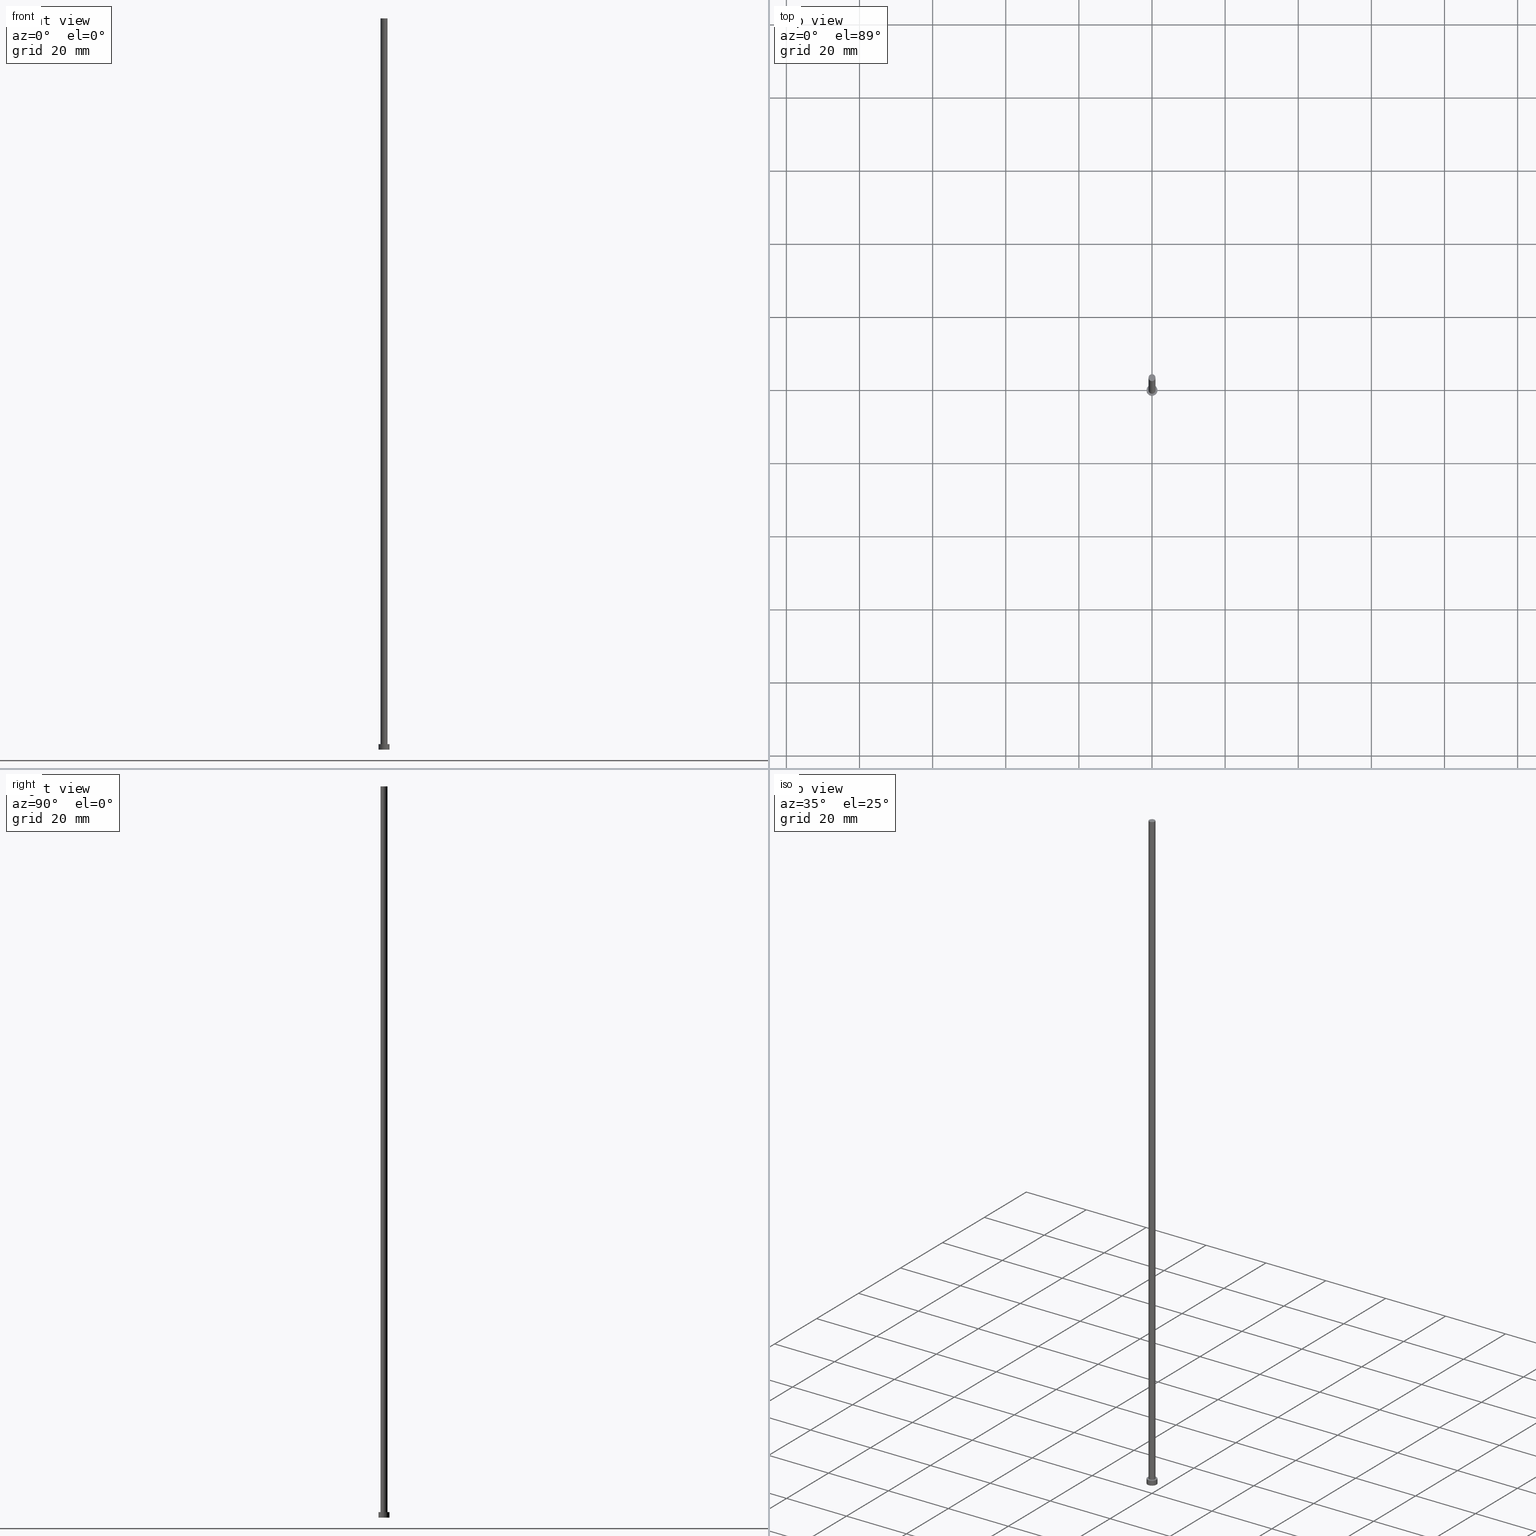
[diagram: canonical four-view strip — front | top / right | iso, engineering-drawing reading convention]
A machine part, canonical four-view strip (front | top / right | iso — engineering-drawing reading convention). The complete STEP part file that produces these views, byte-faithful:
ISO-10303-21;
HEADER;
FILE_DESCRIPTION (( 'STEP AP203' ),
    '1' );
FILE_NAME ('9a84.STEP',
    '2026-02-06T12:32:19',
    ( '' ),
    ( '' ),
    'SwSTEP 2.0',
    'SolidWorks 2019',
    '' );
FILE_SCHEMA (( 'CONFIG_CONTROL_DESIGN' ));
ENDSEC;

DATA;
#1 = CARTESIAN_POINT ( 'NONE',  ( 0.000000000000000000, 0.000000000000000000, 200.0000000000000000 ) ) ;
#2 = DIRECTION ( 'NONE',  ( -0.000000000000000000, -0.000000000000000000, -1.000000000000000000 ) ) ;
#3 = CARTESIAN_POINT ( 'NONE',  ( -1.500000000000000222, 0.000000000000000000, 0.000000000000000000 ) ) ;
#4 = VERTEX_POINT ( 'NONE', #105 ) ;
#5 = PRODUCT_DEFINITION_SHAPE ( 'NONE', 'NONE',  #233 ) ;
#6 = FACE_OUTER_BOUND ( 'NONE', #128, .T. ) ;
#7 = APPLICATION_CONTEXT ( 'configuration controlled 3d designs of mechanical parts and assemblies' ) ;
#8 = ORIENTED_EDGE ( 'NONE', *, *, #19, .F. ) ;
#9 = MECHANICAL_CONTEXT ( 'NONE', #36, 'mechanical' ) ;
#10 = DIRECTION ( 'NONE',  ( 1.000000000000000000, 0.000000000000000000, 0.000000000000000000 ) ) ;
#11 = ORIENTED_EDGE ( 'NONE', *, *, #13, .T. ) ;
#12 = DIRECTION ( 'NONE',  ( 0.000000000000000000, 0.000000000000000000, 1.000000000000000000 ) ) ;
#13 = EDGE_CURVE ( 'NONE', #204, #147, #182, .T. ) ;
#14 = CARTESIAN_POINT ( 'NONE',  ( -1.500000000000000222, 0.000000000000000000, 1.500000000000000000 ) ) ;
#15 = CIRCLE ( 'NONE', #196, 0.9499999999999999556 ) ;
#16 = APPLICATION_PROTOCOL_DEFINITION ( 'international standard', 'config_control_design', 1994, #36 ) ;
#17 = AXIS2_PLACEMENT_3D ( 'NONE', #193, #41, #71 ) ;
#18 = EDGE_CURVE ( 'NONE', #188, #227, #234, .T. ) ;
#19 = EDGE_CURVE ( 'NONE', #204, #4, #252, .T. ) ;
#20 = COORDINATED_UNIVERSAL_TIME_OFFSET ( 1, 0, .AHEAD. ) ;
#21 = DIRECTION ( 'NONE',  ( 1.000000000000000000, 0.000000000000000000, 0.000000000000000000 ) ) ;
#22 = LINE ( 'NONE', #104, #254 ) ;
#23 = ORIENTED_EDGE ( 'NONE', *, *, #29, .T. ) ;
#24 = DIRECTION ( 'NONE',  ( 0.000000000000000000, 0.000000000000000000, 1.000000000000000000 ) ) ;
#25 = EDGE_LOOP ( 'NONE', ( #86, #8, #11, #206 ) ) ;
#26 =( NAMED_UNIT ( * ) PLANE_ANGLE_UNIT ( ) SI_UNIT ( $, .RADIAN. ) );
#27 = DIRECTION ( 'NONE',  ( 1.000000000000000000, 0.000000000000000000, 0.000000000000000000 ) ) ;
#28 = EDGE_LOOP ( 'NONE', ( #208, #47, #40, #152 ) ) ;
#29 = EDGE_CURVE ( 'NONE', #4, #66, #103, .T. ) ;
#30 = PRODUCT_RELATED_PRODUCT_CATEGORY ( 'detail', '', ( #67 ) ) ;
#31 = DIRECTION ( 'NONE',  ( 0.000000000000000000, 0.000000000000000000, 1.000000000000000000 ) ) ;
#32 = ADVANCED_FACE ( 'NONE', ( #83 ), #113, .T. ) ;
#33 = AXIS2_PLACEMENT_3D ( 'NONE', #220, #225, #21 ) ;
#34 = COORDINATED_UNIVERSAL_TIME_OFFSET ( 1, 0, .AHEAD. ) ;
#35 = CC_DESIGN_SECURITY_CLASSIFICATION ( #118, ( #158 ) ) ;
#36 = APPLICATION_CONTEXT ( 'configuration controlled 3d designs of mechanical parts and assemblies' ) ;
#37 = PERSON_AND_ORGANIZATION_ROLE ( 'design_supplier' ) ;
#38 = PERSON_AND_ORGANIZATION ( #218, #202 ) ;
#39 = AXIS2_PLACEMENT_3D ( 'NONE', #135, #31, #69 ) ;
#40 = ORIENTED_EDGE ( 'NONE', *, *, #56, .T. ) ;
#41 = DIRECTION ( 'NONE',  ( 0.000000000000000000, 0.000000000000000000, 1.000000000000000000 ) ) ;
#42 = LOCAL_TIME ( 13, 32, 19.00000000000000000, #20 ) ;
#43 = ORIENTED_EDGE ( 'NONE', *, *, #143, .F. ) ;
#44 = CARTESIAN_POINT ( 'NONE',  ( 0.000000000000000000, 0.000000000000000000, 1.500000000000000000 ) ) ;
#45 = ORIENTED_EDGE ( 'NONE', *, *, #126, .F. ) ;
#46 = FACE_OUTER_BOUND ( 'NONE', #171, .T. ) ;
#47 = ORIENTED_EDGE ( 'NONE', *, *, #237, .T. ) ;
#48 = CC_DESIGN_PERSON_AND_ORGANIZATION_ASSIGNMENT ( #98, #37, ( #158 ) ) ;
#49 = PERSON_AND_ORGANIZATION ( #218, #202 ) ;
#50 = CYLINDRICAL_SURFACE ( 'NONE', #161, 1.500000000000000222 ) ;
#51 = COORDINATED_UNIVERSAL_TIME_OFFSET ( 1, 0, .AHEAD. ) ;
#52 = APPROVAL_STATUS ( 'not_yet_approved' ) ;
#53 = AXIS2_PLACEMENT_3D ( 'NONE', #191, #207, #62 ) ;
#54 = APPROVAL_DATE_TIME ( #73, #179 ) ;
#55 = CC_DESIGN_DATE_AND_TIME_ASSIGNMENT ( #209, #112, ( #233 ) ) ;
#56 = EDGE_CURVE ( 'NONE', #136, #111, #99, .T. ) ;
#57 = PERSON_AND_ORGANIZATION_ROLE ( 'creator' ) ;
#58 = VECTOR ( 'NONE', #131, 1000.000000000000000 ) ;
#59 = DIRECTION ( 'NONE',  ( 1.000000000000000000, 0.000000000000000000, 0.000000000000000000 ) ) ;
#60 = CARTESIAN_POINT ( 'NONE',  ( 0.9499999999999999556, 1.163414459189985682E-16, 200.0000000000000000 ) ) ;
#61 = ORIENTED_EDGE ( 'NONE', *, *, #237, .F. ) ;
#62 = DIRECTION ( 'NONE',  ( 1.000000000000000000, 0.000000000000000000, 0.000000000000000000 ) ) ;
#63 = CARTESIAN_POINT ( 'NONE',  ( -1.500000000000000222, 0.000000000000000000, 1.500000000000000000 ) ) ;
#64 = AXIS2_PLACEMENT_3D ( 'NONE', #176, #249, #156 ) ;
#65 = DIRECTION ( 'NONE',  ( 0.000000000000000000, 0.000000000000000000, 1.000000000000000000 ) ) ;
#66 = VERTEX_POINT ( 'NONE', #106 ) ;
#67 = PRODUCT ( '9a84', '9a84', '', ( #9 ) ) ;
#68 = PERSON_AND_ORGANIZATION_ROLE ( 'design_owner' ) ;
#69 = DIRECTION ( 'NONE',  ( 1.000000000000000000, 0.000000000000000000, -0.000000000000000000 ) ) ;
#70 = APPROVAL_STATUS ( 'not_yet_approved' ) ;
#71 = DIRECTION ( 'NONE',  ( 1.000000000000000000, 0.000000000000000000, 0.000000000000000000 ) ) ;
#72 = PERSON_AND_ORGANIZATION ( #218, #202 ) ;
#73 = DATE_AND_TIME ( #228, #183 ) ;
#74 = CC_DESIGN_PERSON_AND_ORGANIZATION_ASSIGNMENT ( #49, #212, ( #233 ) ) ;
#75 = ADVANCED_FACE ( 'NONE', ( #151, #6 ), #91, .T. ) ;
#76 = AXIS2_PLACEMENT_3D ( 'NONE', #1, #82, #59 ) ;
#77 = APPROVAL_DATE_TIME ( #95, #172 ) ;
#78 = APPROVAL_PERSON_ORGANIZATION ( #192, #172, #139 ) ;
#79 = APPROVAL_ROLE ( '' ) ;
#80 = PERSON_AND_ORGANIZATION ( #218, #202 ) ;
#81 = DATE_TIME_ROLE ( 'classification_date' ) ;
#82 = DIRECTION ( 'NONE',  ( 0.000000000000000000, 0.000000000000000000, 1.000000000000000000 ) ) ;
#83 = FACE_OUTER_BOUND ( 'NONE', #28, .T. ) ;
#84 = AXIS2_PLACEMENT_3D ( 'NONE', #224, #138, #247 ) ;
#85 = DIRECTION ( 'NONE',  ( -1.000000000000000000, 0.000000000000000000, 0.000000000000000000 ) ) ;
#86 = ORIENTED_EDGE ( 'NONE', *, *, #29, .F. ) ;
#87 = DESIGN_CONTEXT ( 'detailed design', #7, 'design' ) ;
#88 = PLANE ( 'NONE',  #39 ) ;
#89 = EDGE_LOOP ( 'NONE', ( #43, #144 ) ) ;
#90 = FACE_OUTER_BOUND ( 'NONE', #92, .T. ) ;
#91 = PLANE ( 'NONE',  #127 ) ;
#92 = EDGE_LOOP ( 'NONE', ( #61, #45, #242, #222 ) ) ;
#93 = FACE_OUTER_BOUND ( 'NONE', #25, .T. ) ;
#94 = FACE_OUTER_BOUND ( 'NONE', #89, .T. ) ;
#95 = DATE_AND_TIME ( #117, #162 ) ;
#96 = CC_DESIGN_APPROVAL ( #179, ( #233 ) ) ;
#97 = CC_DESIGN_PERSON_AND_ORGANIZATION_ASSIGNMENT ( #216, #57, ( #158 ) ) ;
#98 = PERSON_AND_ORGANIZATION ( #218, #202 ) ;
#99 = CIRCLE ( 'NONE', #53, 0.9499999999999999556 ) ;
#100 = SHAPE_DEFINITION_REPRESENTATION ( #5, #159 ) ;
#101 = APPROVAL_STATUS ( 'not_yet_approved' ) ;
#102 = ORIENTED_EDGE ( 'NONE', *, *, #215, .T. ) ;
#103 = LINE ( 'NONE', #184, #213 ) ;
#104 = CARTESIAN_POINT ( 'NONE',  ( 0.9499999999999999556, 1.163414459189985682E-16, 200.0000000000000000 ) ) ;
#105 = CARTESIAN_POINT ( 'NONE',  ( 1.500000000000000222, 1.836970198721030181E-16, 1.500000000000000000 ) ) ;
#106 = CARTESIAN_POINT ( 'NONE',  ( 1.500000000000000222, 1.836970198721030181E-16, 0.000000000000000000 ) ) ;
#107 = ORIENTED_EDGE ( 'NONE', *, *, #215, .F. ) ;
#108 = CARTESIAN_POINT ( 'NONE',  ( 0.000000000000000000, 0.000000000000000000, 200.0000000000000000 ) ) ;
#109 = UNCERTAINTY_MEASURE_WITH_UNIT (LENGTH_MEASURE( 1.000000000000000082E-05 ), #194, 'distance_accuracy_value', 'NONE');
#110 = CARTESIAN_POINT ( 'NONE',  ( 0.000000000000000000, 0.000000000000000000, 0.000000000000000000 ) ) ;
#111 = VERTEX_POINT ( 'NONE', #231 ) ;
#112 = DATE_TIME_ROLE ( 'creation_date' ) ;
#113 = CYLINDRICAL_SURFACE ( 'NONE', #115, 0.9499999999999999556 ) ;
#114 = DIRECTION ( 'NONE',  ( -0.000000000000000000, -0.000000000000000000, -1.000000000000000000 ) ) ;
#115 = AXIS2_PLACEMENT_3D ( 'NONE', #149, #170, #85 ) ;
#116 = ADVANCED_FACE ( 'NONE', ( #241 ), #50, .T. ) ;
#117 = CALENDAR_DATE ( 2026, 6, 2 ) ;
#118 = SECURITY_CLASSIFICATION ( '', '', #253 ) ;
#119 = AXIS2_PLACEMENT_3D ( 'NONE', #178, #12, #160 ) ;
#120 = ADVANCED_FACE ( 'NONE', ( #46 ), #168, .T. ) ;
#121 = CALENDAR_DATE ( 2026, 6, 2 ) ;
#122 = PERSON_AND_ORGANIZATION_ROLE ( 'classification_officer' ) ;
#123 = CALENDAR_DATE ( 2026, 6, 2 ) ;
#124 = ADVANCED_FACE ( 'NONE', ( #94 ), #88, .F. ) ;
#125 = CC_DESIGN_PERSON_AND_ORGANIZATION_ASSIGNMENT ( #38, #122, ( #118 ) ) ;
#126 = EDGE_CURVE ( 'NONE', #227, #188, #199, .T. ) ;
#127 = AXIS2_PLACEMENT_3D ( 'NONE', #226, #229, #173 ) ;
#128 = EDGE_LOOP ( 'NONE', ( #169, #102 ) ) ;
#129 = MANIFOLD_SOLID_BREP ( 'P�idat vysunut�m3', #167 ) ;
#130 = CIRCLE ( 'NONE', #64, 1.500000000000000222 ) ;
#131 = DIRECTION ( 'NONE',  ( -0.000000000000000000, -0.000000000000000000, -1.000000000000000000 ) ) ;
#132 = EDGE_LOOP ( 'NONE', ( #165, #201 ) ) ;
#133 = CARTESIAN_POINT ( 'NONE',  ( 0.9499999999999999556, 1.163414459189985682E-16, 1.500000000000000000 ) ) ;
#134 = ORIENTED_EDGE ( 'NONE', *, *, #13, .F. ) ;
#135 = CARTESIAN_POINT ( 'NONE',  ( 0.000000000000000000, 0.000000000000000000, 0.000000000000000000 ) ) ;
#136 = VERTEX_POINT ( 'NONE', #133 ) ;
#137 = CALENDAR_DATE ( 2026, 6, 2 ) ;
#138 = DIRECTION ( 'NONE',  ( 0.000000000000000000, 0.000000000000000000, 1.000000000000000000 ) ) ;
#139 = APPROVAL_ROLE ( '' ) ;
#140 = PERSON_AND_ORGANIZATION ( #218, #202 ) ;
#141 = AXIS2_PLACEMENT_3D ( 'NONE', #110, #65, #27 ) ;
#142 = APPROVAL_DATE_TIME ( #200, #155 ) ;
#143 = EDGE_CURVE ( 'NONE', #147, #66, #232, .T. ) ;
#144 = ORIENTED_EDGE ( 'NONE', *, *, #164, .F. ) ;
#145 = VECTOR ( 'NONE', #150, 1000.000000000000000 ) ;
#146 = LINE ( 'NONE', #221, #58 ) ;
#147 = VERTEX_POINT ( 'NONE', #3 ) ;
#148 = AXIS2_PLACEMENT_3D ( 'NONE', #108, #114, #250 ) ;
#149 = CARTESIAN_POINT ( 'NONE',  ( 0.000000000000000000, 0.000000000000000000, 200.0000000000000000 ) ) ;
#150 = DIRECTION ( 'NONE',  ( -0.000000000000000000, -0.000000000000000000, -1.000000000000000000 ) ) ;
#151 = FACE_BOUND ( 'NONE', #132, .T. ) ;
#152 = ORIENTED_EDGE ( 'NONE', *, *, #190, .F. ) ;
#153 = APPLICATION_PROTOCOL_DEFINITION ( 'international standard', 'config_control_design', 1994, #7 ) ;
#154 = CARTESIAN_POINT ( 'NONE',  ( 0.000000000000000000, 0.000000000000000000, 1.500000000000000000 ) ) ;
#155 = APPROVAL ( #101, 'NEUR�EN�' ) ;
#156 = DIRECTION ( 'NONE',  ( 1.000000000000000000, 0.000000000000000000, 0.000000000000000000 ) ) ;
#157 = CYLINDRICAL_SURFACE ( 'NONE', #148, 0.9499999999999999556 ) ;
#158 = PRODUCT_DEFINITION_FORMATION_WITH_SPECIFIED_SOURCE ( 'LIBOVOLN�', '', #67, .NOT_KNOWN. ) ;
#159 = ADVANCED_BREP_SHAPE_REPRESENTATION ( '9a84', ( #129, #119 ), #235 ) ;
#160 = DIRECTION ( 'NONE',  ( 1.000000000000000000, 0.000000000000000000, 0.000000000000000000 ) ) ;
#161 = AXIS2_PLACEMENT_3D ( 'NONE', #44, #243, #187 ) ;
#162 = LOCAL_TIME ( 13, 32, 19.00000000000000000, #211 ) ;
#163 = COORDINATED_UNIVERSAL_TIME_OFFSET ( 1, 0, .AHEAD. ) ;
#164 = EDGE_CURVE ( 'NONE', #66, #147, #219, .T. ) ;
#165 = ORIENTED_EDGE ( 'NONE', *, *, #175, .F. ) ;
#166 = ORIENTED_EDGE ( 'NONE', *, *, #126, .T. ) ;
#167 = CLOSED_SHELL ( 'NONE', ( #32, #116, #251, #75, #124, #239, #120 ) ) ;
#168 = PLANE ( 'NONE',  #84 ) ;
#169 = ORIENTED_EDGE ( 'NONE', *, *, #19, .T. ) ;
#170 = DIRECTION ( 'NONE',  ( -0.000000000000000000, -0.000000000000000000, -1.000000000000000000 ) ) ;
#171 = EDGE_LOOP ( 'NONE', ( #166, #246 ) ) ;
#172 = APPROVAL ( #70, 'NEUR�EN�' ) ;
#173 = DIRECTION ( 'NONE',  ( 1.000000000000000000, 0.000000000000000000, -0.000000000000000000 ) ) ;
#174 = CYLINDRICAL_SURFACE ( 'NONE', #177, 1.500000000000000222 ) ;
#175 = EDGE_CURVE ( 'NONE', #111, #136, #15, .T. ) ;
#176 = CARTESIAN_POINT ( 'NONE',  ( 0.000000000000000000, 0.000000000000000000, 1.500000000000000000 ) ) ;
#177 = AXIS2_PLACEMENT_3D ( 'NONE', #195, #189, #214 ) ;
#178 = CARTESIAN_POINT ( 'NONE',  ( 0.000000000000000000, 0.000000000000000000, 0.000000000000000000 ) ) ;
#179 = APPROVAL ( #52, 'NEUR�EN�' ) ;
#180 = CC_DESIGN_APPROVAL ( #155, ( #118 ) ) ;
#181 = APPROVAL_PERSON_ORGANIZATION ( #72, #179, #248 ) ;
#182 = LINE ( 'NONE', #63, #145 ) ;
#183 = LOCAL_TIME ( 13, 32, 19.00000000000000000, #51 ) ;
#184 = CARTESIAN_POINT ( 'NONE',  ( 1.500000000000000222, 1.836970198721030181E-16, 1.500000000000000000 ) ) ;
#185 = DIRECTION ( 'NONE',  ( -0.000000000000000000, -0.000000000000000000, -1.000000000000000000 ) ) ;
#186 = ORIENTED_EDGE ( 'NONE', *, *, #164, .T. ) ;
#187 = DIRECTION ( 'NONE',  ( -1.000000000000000000, 0.000000000000000000, 0.000000000000000000 ) ) ;
#188 = VERTEX_POINT ( 'NONE', #60 ) ;
#189 = DIRECTION ( 'NONE',  ( -0.000000000000000000, -0.000000000000000000, -1.000000000000000000 ) ) ;
#190 = EDGE_CURVE ( 'NONE', #227, #111, #146, .T. ) ;
#191 = CARTESIAN_POINT ( 'NONE',  ( 0.000000000000000000, 0.000000000000000000, 1.500000000000000000 ) ) ;
#192 = PERSON_AND_ORGANIZATION ( #218, #202 ) ;
#193 = CARTESIAN_POINT ( 'NONE',  ( 0.000000000000000000, 0.000000000000000000, 200.0000000000000000 ) ) ;
#194 =( LENGTH_UNIT ( ) NAMED_UNIT ( * ) SI_UNIT ( .MILLI., .METRE. ) );
#195 = CARTESIAN_POINT ( 'NONE',  ( 0.000000000000000000, 0.000000000000000000, 1.500000000000000000 ) ) ;
#196 = AXIS2_PLACEMENT_3D ( 'NONE', #154, #210, #10 ) ;
#197 = CC_DESIGN_DATE_AND_TIME_ASSIGNMENT ( #255, #81, ( #118 ) ) ;
#198 = CC_DESIGN_APPROVAL ( #172, ( #158 ) ) ;
#199 = CIRCLE ( 'NONE', #17, 0.9499999999999999556 ) ;
#200 = DATE_AND_TIME ( #121, #238 ) ;
#201 = ORIENTED_EDGE ( 'NONE', *, *, #56, .F. ) ;
#202 = ORGANIZATION ( 'NEUR�EN�', 'NEUR�EN�', '' ) ;
#203 = CARTESIAN_POINT ( 'NONE',  ( -0.9499999999999999556, 0.000000000000000000, 200.0000000000000000 ) ) ;
#204 = VERTEX_POINT ( 'NONE', #14 ) ;
#205 = CARTESIAN_POINT ( 'NONE',  ( 0.000000000000000000, 0.000000000000000000, 0.000000000000000000 ) ) ;
#206 = ORIENTED_EDGE ( 'NONE', *, *, #143, .T. ) ;
#207 = DIRECTION ( 'NONE',  ( 0.000000000000000000, 0.000000000000000000, 1.000000000000000000 ) ) ;
#208 = ORIENTED_EDGE ( 'NONE', *, *, #18, .F. ) ;
#209 = DATE_AND_TIME ( #137, #236 ) ;
#210 = DIRECTION ( 'NONE',  ( 0.000000000000000000, 0.000000000000000000, 1.000000000000000000 ) ) ;
#211 = COORDINATED_UNIVERSAL_TIME_OFFSET ( 1, 0, .AHEAD. ) ;
#212 = PERSON_AND_ORGANIZATION_ROLE ( 'creator' ) ;
#213 = VECTOR ( 'NONE', #2, 1000.000000000000000 ) ;
#214 = DIRECTION ( 'NONE',  ( -1.000000000000000000, 0.000000000000000000, 0.000000000000000000 ) ) ;
#215 = EDGE_CURVE ( 'NONE', #4, #204, #130, .T. ) ;
#216 = PERSON_AND_ORGANIZATION ( #218, #202 ) ;
#217 = CC_DESIGN_PERSON_AND_ORGANIZATION_ASSIGNMENT ( #140, #68, ( #67 ) ) ;
#218 = PERSON ( 'NEUR�EN�', 'NEUR�EN�', 'NEUR�EN�', ('NEUR�EN�'), ('NEUR�EN�'), ('NEUR�EN�') ) ;
#219 = CIRCLE ( 'NONE', #141, 1.500000000000000222 ) ;
#220 = CARTESIAN_POINT ( 'NONE',  ( 0.000000000000000000, 0.000000000000000000, 1.500000000000000000 ) ) ;
#221 = CARTESIAN_POINT ( 'NONE',  ( -0.9499999999999999556, 0.000000000000000000, 200.0000000000000000 ) ) ;
#222 = ORIENTED_EDGE ( 'NONE', *, *, #175, .T. ) ;
#223 = APPROVAL_PERSON_ORGANIZATION ( #80, #155, #79 ) ;
#224 = CARTESIAN_POINT ( 'NONE',  ( 0.000000000000000000, 0.000000000000000000, 200.0000000000000000 ) ) ;
#225 = DIRECTION ( 'NONE',  ( 0.000000000000000000, 0.000000000000000000, 1.000000000000000000 ) ) ;
#226 = CARTESIAN_POINT ( 'NONE',  ( 0.000000000000000000, 0.000000000000000000, 1.500000000000000000 ) ) ;
#227 = VERTEX_POINT ( 'NONE', #203 ) ;
#228 = CALENDAR_DATE ( 2026, 6, 2 ) ;
#229 = DIRECTION ( 'NONE',  ( 0.000000000000000000, 0.000000000000000000, 1.000000000000000000 ) ) ;
#230 =( NAMED_UNIT ( * ) SI_UNIT ( $, .STERADIAN. ) SOLID_ANGLE_UNIT ( ) );
#231 = CARTESIAN_POINT ( 'NONE',  ( -0.9499999999999999556, 0.000000000000000000, 1.500000000000000000 ) ) ;
#232 = CIRCLE ( 'NONE', #240, 1.500000000000000222 ) ;
#233 = PRODUCT_DEFINITION ( 'NEZN�M�', '', #158, #87 ) ;
#234 = CIRCLE ( 'NONE', #76, 0.9499999999999999556 ) ;
#235 =( GEOMETRIC_REPRESENTATION_CONTEXT ( 3 ) GLOBAL_UNCERTAINTY_ASSIGNED_CONTEXT ( ( #109 ) ) GLOBAL_UNIT_ASSIGNED_CONTEXT ( ( #194, #26, #230 ) ) REPRESENTATION_CONTEXT ( 'NONE', 'WORKASPACE' ) );
#236 = LOCAL_TIME ( 13, 32, 19.00000000000000000, #34 ) ;
#237 = EDGE_CURVE ( 'NONE', #188, #136, #22, .T. ) ;
#238 = LOCAL_TIME ( 13, 32, 19.00000000000000000, #163 ) ;
#239 = ADVANCED_FACE ( 'NONE', ( #90 ), #157, .T. ) ;
#240 = AXIS2_PLACEMENT_3D ( 'NONE', #205, #24, #245 ) ;
#241 = FACE_OUTER_BOUND ( 'NONE', #244, .T. ) ;
#242 = ORIENTED_EDGE ( 'NONE', *, *, #190, .T. ) ;
#243 = DIRECTION ( 'NONE',  ( -0.000000000000000000, -0.000000000000000000, -1.000000000000000000 ) ) ;
#244 = EDGE_LOOP ( 'NONE', ( #107, #23, #186, #134 ) ) ;
#245 = DIRECTION ( 'NONE',  ( 1.000000000000000000, 0.000000000000000000, 0.000000000000000000 ) ) ;
#246 = ORIENTED_EDGE ( 'NONE', *, *, #18, .T. ) ;
#247 = DIRECTION ( 'NONE',  ( 1.000000000000000000, 0.000000000000000000, -0.000000000000000000 ) ) ;
#248 = APPROVAL_ROLE ( '' ) ;
#249 = DIRECTION ( 'NONE',  ( 0.000000000000000000, 0.000000000000000000, 1.000000000000000000 ) ) ;
#250 = DIRECTION ( 'NONE',  ( -1.000000000000000000, 0.000000000000000000, 0.000000000000000000 ) ) ;
#251 = ADVANCED_FACE ( 'NONE', ( #93 ), #174, .T. ) ;
#252 = CIRCLE ( 'NONE', #33, 1.500000000000000222 ) ;
#253 = SECURITY_CLASSIFICATION_LEVEL ( 'unclassified' ) ;
#254 = VECTOR ( 'NONE', #185, 1000.000000000000000 ) ;
#255 = DATE_AND_TIME ( #123, #42 ) ;
ENDSEC;
END-ISO-10303-21;
